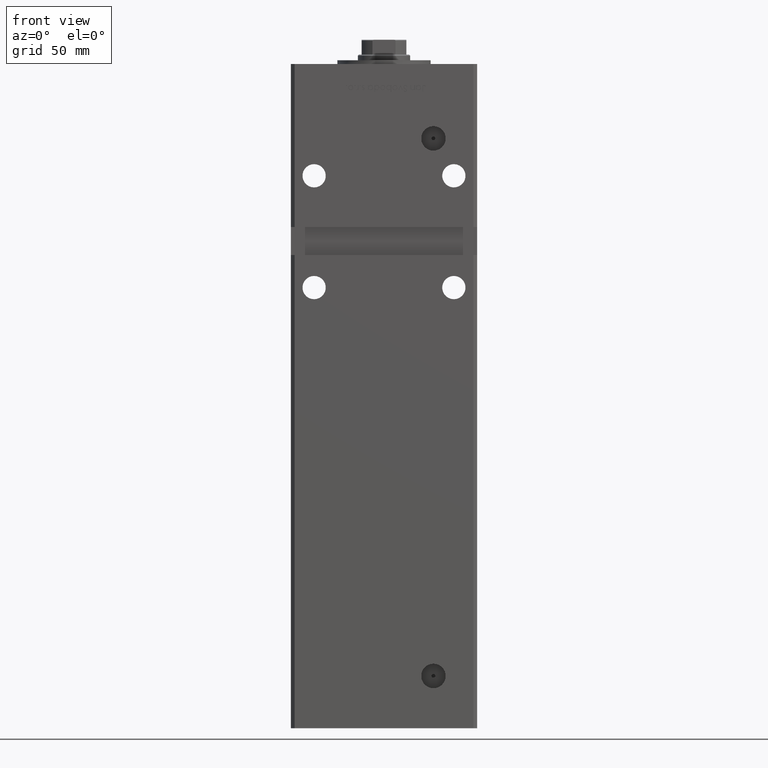
[diagram: clean part render]
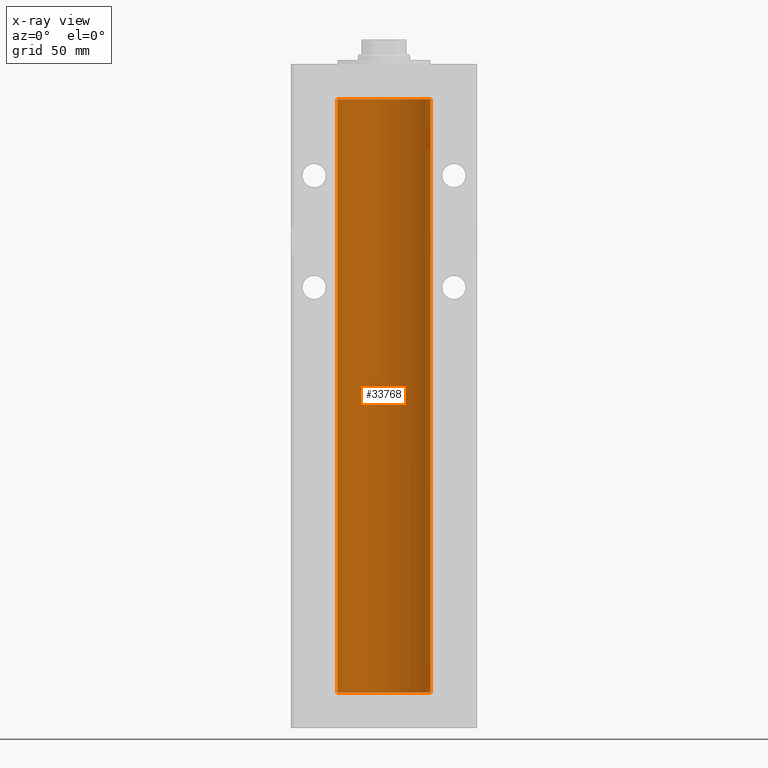
[diagram: x-ray — body ghosted, one internal face saturated and labeled with its STEP entity id]
A machine part, front view, then the same camera in x-ray: the body is ghosted and one INTERNAL B-rep face — a face not visible from any outside direction — is saturated and labeled: STEP entity #33768.
In plain terms, the highlighted cylindrical surface (partial cylindrical patch) has radius 25 mm, axis along (-0, -0, -1).
Its self-contained STEP definition (entity closure, byte-faithful):
#930 = CIRCLE ( 'NONE', #2596, 25.00000000000000000 ) ;
#1421 = DIRECTION ( 'NONE',  ( -0.000000000000000000, -0.000000000000000000, -1.000000000000000000 ) ) ;
#2234 = EDGE_CURVE ( 'NONE', #17657, #14309, #930, .T. ) ;
#2596 = AXIS2_PLACEMENT_3D ( 'NONE', #7347, #32102, #3326 ) ;
#3326 = DIRECTION ( 'NONE',  ( 1.000000000000000000, 0.000000000000000000, 0.000000000000000000 ) ) ;
#4200 = CARTESIAN_POINT ( 'NONE',  ( 25.00000000000000000, 3.061616997868383043E-15, 0.000000000000000000 ) ) ;
#6859 = CARTESIAN_POINT ( 'NONE',  ( -25.00000000000000000, 0.000000000000000000, 318.5000000000000000 ) ) ;
#7347 = CARTESIAN_POINT ( 'NONE',  ( 0.000000000000000000, 0.000000000000000000, 318.5000000000000000 ) ) ;
#7374 = DIRECTION ( 'NONE',  ( -0.000000000000000000, -0.000000000000000000, -1.000000000000000000 ) ) ;
#9888 = EDGE_LOOP ( 'NONE', ( #17307, #30131, #24583, #27514 ) ) ;
#12098 = DIRECTION ( 'NONE',  ( -0.000000000000000000, -0.000000000000000000, -1.000000000000000000 ) ) ;
#13142 = VERTEX_POINT ( 'NONE', #16131 ) ;
#13783 = CARTESIAN_POINT ( 'NONE',  ( -25.00000000000000000, 0.000000000000000000, 318.5000000000000000 ) ) ;
#14309 = VERTEX_POINT ( 'NONE', #6859 ) ;
#16131 = CARTESIAN_POINT ( 'NONE',  ( -25.00000000000000000, 0.000000000000000000, 0.000000000000000000 ) ) ;
#17281 = EDGE_CURVE ( 'NONE', #43004, #13142, #17783, .T. ) ;
#17307 = ORIENTED_EDGE ( 'NONE', *, *, #48540, .F. ) ;
#17657 = VERTEX_POINT ( 'NONE', #29628 ) ;
#17783 = CIRCLE ( 'NONE', #49546, 25.00000000000000000 ) ;
#18000 = VECTOR ( 'NONE', #7374, 1000.000000000000000 ) ;
#18187 = AXIS2_PLACEMENT_3D ( 'NONE', #32275, #12098, #37119 ) ;
#19664 = VECTOR ( 'NONE', #1421, 1000.000000000000000 ) ;
#23773 = CARTESIAN_POINT ( 'NONE',  ( 25.00000000000000000, 3.061616997868383043E-15, 318.5000000000000000 ) ) ;
#24475 = FACE_OUTER_BOUND ( 'NONE', #9888, .T. ) ;
#24583 = ORIENTED_EDGE ( 'NONE', *, *, #42634, .T. ) ;
#25124 = DIRECTION ( 'NONE',  ( -0.000000000000000000, 0.000000000000000000, 1.000000000000000000 ) ) ;
#26167 = LINE ( 'NONE', #13783, #19664 ) ;
#27514 = ORIENTED_EDGE ( 'NONE', *, *, #17281, .F. ) ;
#29628 = CARTESIAN_POINT ( 'NONE',  ( 25.00000000000000000, 3.061616997868383043E-15, 318.5000000000000000 ) ) ;
#29685 = DIRECTION ( 'NONE',  ( 1.000000000000000000, 0.000000000000000000, 0.000000000000000000 ) ) ;
#30131 = ORIENTED_EDGE ( 'NONE', *, *, #2234, .T. ) ;
#32102 = DIRECTION ( 'NONE',  ( -0.000000000000000000, 0.000000000000000000, 1.000000000000000000 ) ) ;
#32275 = CARTESIAN_POINT ( 'NONE',  ( 0.000000000000000000, 0.000000000000000000, 318.5000000000000000 ) ) ;
#33187 = CARTESIAN_POINT ( 'NONE',  ( 0.000000000000000000, 0.000000000000000000, 0.000000000000000000 ) ) ;
#33768 = ADVANCED_FACE ( 'NONE', ( #24475 ), #41405, .F. ) ;
#37119 = DIRECTION ( 'NONE',  ( -1.000000000000000000, 0.000000000000000000, 0.000000000000000000 ) ) ;
#41405 = CYLINDRICAL_SURFACE ( 'NONE', #18187, 25.00000000000000000 ) ;
#42634 = EDGE_CURVE ( 'NONE', #14309, #13142, #26167, .T. ) ;
#43004 = VERTEX_POINT ( 'NONE', #4200 ) ;
#44199 = LINE ( 'NONE', #23773, #18000 ) ;
#48540 = EDGE_CURVE ( 'NONE', #17657, #43004, #44199, .T. ) ;
#49546 = AXIS2_PLACEMENT_3D ( 'NONE', #33187, #25124, #29685 ) ;